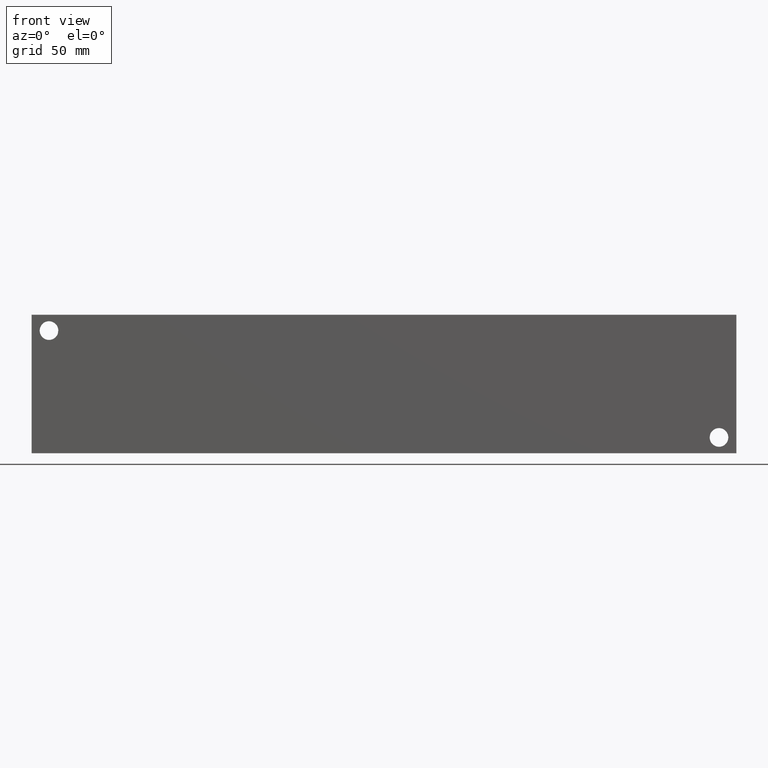
[diagram: clean part render]
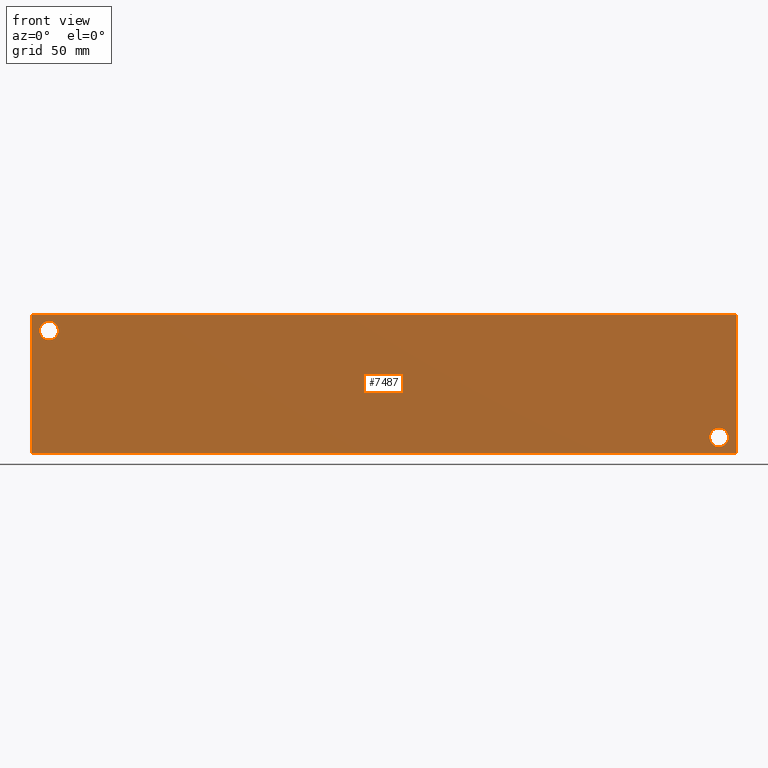
[diagram: same view with one face highlighted and labeled with its STEP entity id]
A machine part, front view. The second image highlights one B-rep face of the part: STEP entity #7487.
In plain terms, the highlighted planar face has unit normal (0, -1, 0).
Its self-contained STEP definition (entity closure, byte-faithful):
#96=CIRCLE('',#7728,5.1562);
#97=CIRCLE('',#7729,5.1562);
#99=CIRCLE('',#7738,5.1562);
#100=CIRCLE('',#7739,5.1562);
#260=FACE_BOUND('',#1357,.T.);
#261=FACE_BOUND('',#1358,.T.);
#922=FACE_OUTER_BOUND('',#1356,.T.);
#1356=EDGE_LOOP('',(#6566,#6567,#6568,#6569));
#1357=EDGE_LOOP('',(#6570,#6571));
#1358=EDGE_LOOP('',(#6572,#6573));
#1627=LINE('',#11462,#2341);
#2070=LINE('',#12838,#2784);
#2075=LINE('',#12847,#2789);
#2076=LINE('',#12849,#2790);
#2341=VECTOR('',#8336,10.);
#2784=VECTOR('',#9475,10.);
#2789=VECTOR('',#9484,10.);
#2790=VECTOR('',#9487,10.);
#3079=VERTEX_POINT('',#11460);
#3080=VERTEX_POINT('',#11461);
#3357=VERTEX_POINT('',#12400);
#3358=VERTEX_POINT('',#12401);
#3362=VERTEX_POINT('',#12418);
#3363=VERTEX_POINT('',#12419);
#3481=VERTEX_POINT('',#12836);
#3483=VERTEX_POINT('',#12845);
#3916=EDGE_CURVE('',#3079,#3080,#1627,.T.);
#4325=EDGE_CURVE('',#3357,#3358,#96,.T.);
#4326=EDGE_CURVE('',#3358,#3357,#97,.T.);
#4335=EDGE_CURVE('',#3362,#3363,#99,.T.);
#4336=EDGE_CURVE('',#3363,#3362,#100,.T.);
#4510=EDGE_CURVE('',#3481,#3079,#2070,.T.);
#4515=EDGE_CURVE('',#3483,#3080,#2075,.T.);
#4516=EDGE_CURVE('',#3481,#3483,#2076,.T.);
#6566=ORIENTED_EDGE('',*,*,#4516,.T.);
#6567=ORIENTED_EDGE('',*,*,#4515,.T.);
#6568=ORIENTED_EDGE('',*,*,#3916,.F.);
#6569=ORIENTED_EDGE('',*,*,#4510,.F.);
#6570=ORIENTED_EDGE('',*,*,#4325,.T.);
#6571=ORIENTED_EDGE('',*,*,#4326,.T.);
#6572=ORIENTED_EDGE('',*,*,#4335,.T.);
#6573=ORIENTED_EDGE('',*,*,#4336,.T.);
#6809=PLANE('',#7925);
#7487=ADVANCED_FACE('',(#922,#260,#261),#6809,.T.);
#7728=AXIS2_PLACEMENT_3D('',#12402,#9023,#9024);
#7729=AXIS2_PLACEMENT_3D('',#12403,#9025,#9026);
#7738=AXIS2_PLACEMENT_3D('',#12420,#9046,#9047);
#7739=AXIS2_PLACEMENT_3D('',#12421,#9048,#9049);
#7925=AXIS2_PLACEMENT_3D('',#12848,#9485,#9486);
#8336=DIRECTION('',(1.,0.,0.));
#9023=DIRECTION('center_axis',(0.,1.,0.));
#9024=DIRECTION('ref_axis',(1.,0.,0.));
#9025=DIRECTION('center_axis',(0.,1.,0.));
#9026=DIRECTION('ref_axis',(1.,0.,0.));
#9046=DIRECTION('center_axis',(0.,1.,0.));
#9047=DIRECTION('ref_axis',(1.,0.,0.));
#9048=DIRECTION('center_axis',(0.,1.,0.));
#9049=DIRECTION('ref_axis',(1.,0.,0.));
#9475=DIRECTION('',(0.,0.,1.));
#9484=DIRECTION('',(0.,0.,1.));
#9485=DIRECTION('center_axis',(0.,-1.,0.));
#9486=DIRECTION('ref_axis',(1.,0.,0.));
#9487=DIRECTION('',(1.,0.,0.));
#11460=CARTESIAN_POINT('',(0.,0.,76.2));
#11461=CARTESIAN_POINT('',(387.35,0.,76.2));
#11462=CARTESIAN_POINT('',(0.,0.,76.2));
#12400=CARTESIAN_POINT('',(382.9812,0.,8.73125));
#12401=CARTESIAN_POINT('',(372.6688,0.,8.73125));
#12402=CARTESIAN_POINT('Origin',(377.825,0.,8.73125));
#12403=CARTESIAN_POINT('Origin',(377.825,0.,8.73125));
#12418=CARTESIAN_POINT('',(14.6812,0.,67.45605));
#12419=CARTESIAN_POINT('',(4.3688,0.,67.45605));
#12420=CARTESIAN_POINT('Origin',(9.525,0.,67.45605));
#12421=CARTESIAN_POINT('Origin',(9.525,0.,67.45605));
#12836=CARTESIAN_POINT('',(0.,0.,0.));
#12838=CARTESIAN_POINT('',(0.,0.,0.));
#12845=CARTESIAN_POINT('',(387.35,0.,0.));
#12847=CARTESIAN_POINT('',(387.35,0.,0.));
#12848=CARTESIAN_POINT('Origin',(0.,0.,0.));
#12849=CARTESIAN_POINT('',(0.,0.,0.));